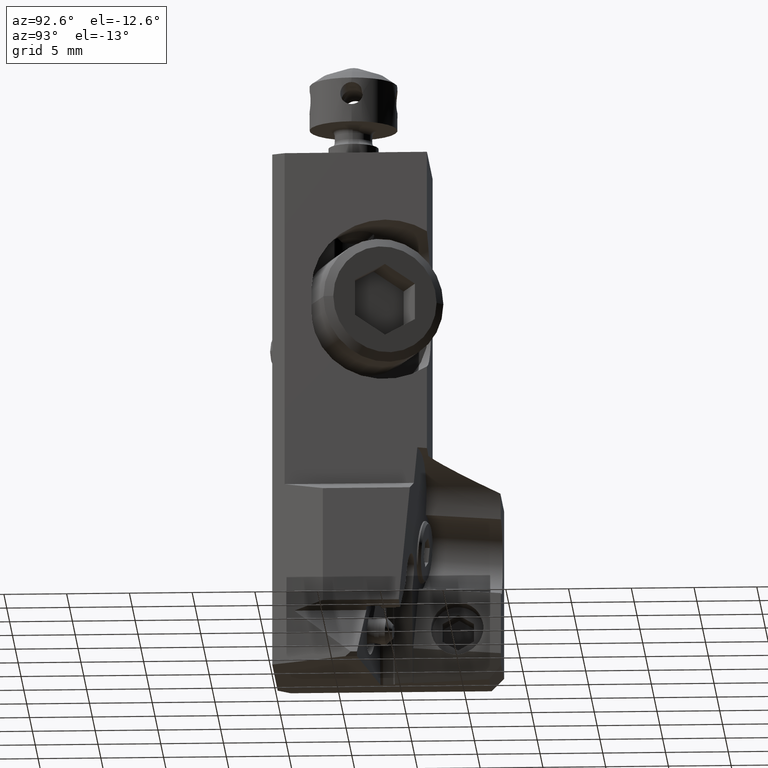
[diagram: clean part render]
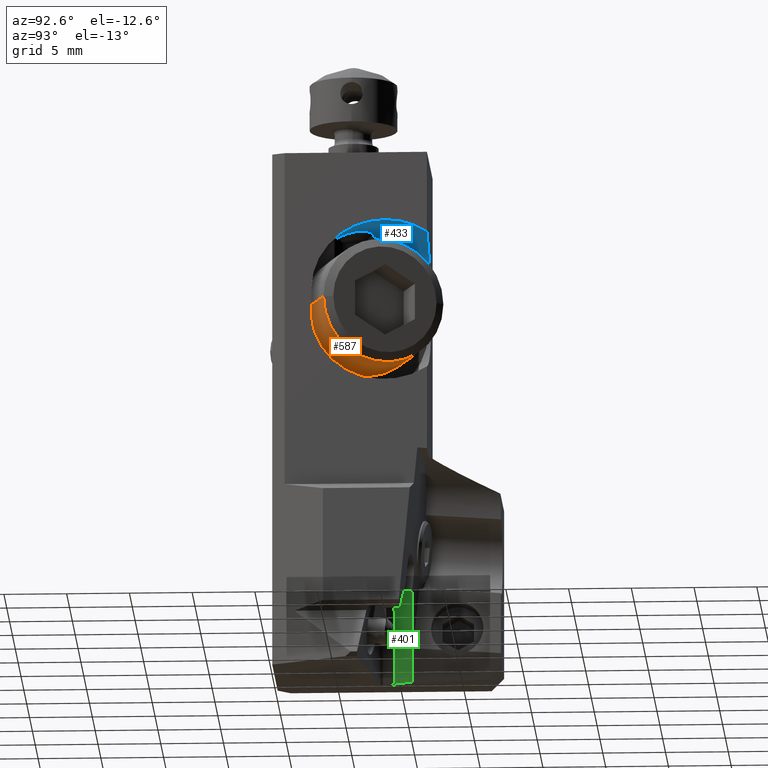
[diagram: same view with three faces highlighted in distinct colors, each labeled with its STEP entity id]
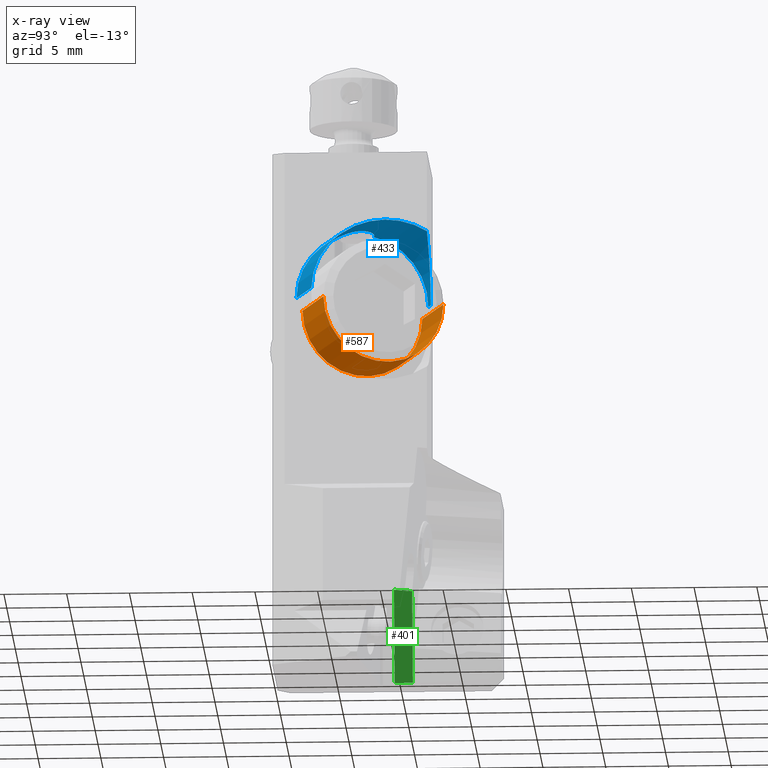
[diagram: x-ray of the same camera — body ghosted, the three highlighted faces saturated]
A machine part, auxiliary view with three faces highlighted in distinct colors.
The next image is the same camera in x-ray (body ghosted, the three faces saturated) — at least one of them is partly hidden behind the body in this view.
Their STEP definitions:

[orange] entity #587 — the highlighted cylindrical surface (partial cylindrical patch) has radius 5 mm, axis along (0.9397, 0.342, 0).
#204=CYLINDRICAL_SURFACE('',#4647,5.000000000001);
#372=CIRCLE('',#4641,5.000000000001);
#375=CIRCLE('',#4646,4.999999999997);
#587=ADVANCED_FACE('',(#908),#204,.T.);
#908=FACE_OUTER_BOUND('',#1137,.T.);
#1137=EDGE_LOOP('',(#2355,#2356,#2357,#2358));
#2355=ORIENTED_EDGE('',*,*,#3354,.T.);
#2356=ORIENTED_EDGE('',*,*,#3357,.F.);
#2357=ORIENTED_EDGE('',*,*,#3359,.T.);
#2358=ORIENTED_EDGE('',*,*,#3358,.F.);
#2770=VERTEX_POINT('',#7693);
#2771=VERTEX_POINT('',#7694);
#2772=VERTEX_POINT('',#7698);
#2773=VERTEX_POINT('',#7699);
#3354=EDGE_CURVE('',#2770,#2771,#372,.T.);
#3357=EDGE_CURVE('',#2773,#2771,#3713,.T.);
#3358=EDGE_CURVE('',#2770,#2772,#3714,.T.);
#3359=EDGE_CURVE('',#2773,#2772,#375,.T.);
#3713=LINE('',#7700,#4066);
#3714=LINE('',#7701,#4067);
#4066=VECTOR('',#5865,1.);
#4067=VECTOR('',#5866,1.);
#4641=AXIS2_PLACEMENT_3D('',#7692,#5857,#5858);
#4646=AXIS2_PLACEMENT_3D('',#7703,#5869,#5870);
#4647=AXIS2_PLACEMENT_3D('',#7704,#5871,#5872);
#5857=DIRECTION('',(0.939692620785822,0.342020143325908,0.));
#5858=DIRECTION('',(0.342020143325908,-0.939692620785822,0.));
#5865=DIRECTION('',(-0.939692620785854,-0.34202014332582,0.));
#5866=DIRECTION('',(0.939692620785757,0.342020143326084,0.));
#5869=DIRECTION('',(-0.939692620786146,-0.342020143325017,0.));
#5870=DIRECTION('',(-0.342020143325017,0.939692620786146,0.));
#5871=DIRECTION('',(0.939692620785821,0.342020143325908,0.));
#5872=DIRECTION('',(0.342020143325908,-0.939692620785821,0.));
#7692=CARTESIAN_POINT('',(-5.638155724714,6.951551716972,-12.));
#7693=CARTESIAN_POINT('',(-3.928055008086,2.253088613043,-12.));
#7694=CARTESIAN_POINT('',(-7.348256441344,11.6500148209,-12.));
#7698=CARTESIAN_POINT('',(1.334223668309,4.168401415667,-12.));
#7699=CARTESIAN_POINT('',(-2.085977764944,13.56532762353,-12.));
#7700=CARTESIAN_POINT('',(-2.085977764944,13.56532762353,-12.));
#7701=CARTESIAN_POINT('',(-3.928055008086,2.253088613043,-12.));
#7703=CARTESIAN_POINT('',(-0.3758770483201,8.866864519598,-12.));
#7704=CARTESIAN_POINT('',(-5.743401298242,6.91324546092,-12.));

[blue] entity #433 — the highlighted cylindrical surface (partial cylindrical patch) has radius 5.5 mm, axis along (-0.9397, -0.342, 0).
#154=CYLINDRICAL_SURFACE('',#4343,5.5);
#223=CIRCLE('',#4301,5.5);
#224=CIRCLE('',#4302,5.5);
#433=ADVANCED_FACE('',(#760),#154,.F.);
#760=FACE_OUTER_BOUND('',#977,.T.);
#977=EDGE_LOOP('',(#1591,#1592,#1593,#1594,#1595,#1596,#1597,#1598,#1599,
#1600));
#1153=B_SPLINE_CURVE_WITH_KNOTS('',3,(#6278,#6279,#6280,#6281,#6282,#6283,
#6284,#6285,#6286,#6287,#6288,#6289,#6290),.UNSPECIFIED.,.F.,.F.,(4,3,3,
3,4),(0.,0.302663753057864,0.605267754075133,0.906389752017985,1.),
 .UNSPECIFIED.);
#1158=B_SPLINE_CURVE_WITH_KNOTS('',3,(#6424,#6425,#6426,#6427,#6428,#6429,
#6430,#6431,#6432,#6433,#6434,#6435,#6436),.UNSPECIFIED.,.F.,.F.,(4,1,1,
1,1,1,1,1,1,1,4),(0.,0.1,0.2,0.3,0.4,0.5,0.6,0.7,0.8,0.9,1.),
 .UNSPECIFIED.);
#1159=B_SPLINE_CURVE_WITH_KNOTS('',3,(#6438,#6439,#6440,#6441,#6442,#6443,
#6444,#6445,#6446,#6447),.UNSPECIFIED.,.F.,.F.,(4,3,3,4),(0.,0.409159998775695,
0.818098861441714,1.),.UNSPECIFIED.);
#1194=ELLIPSE('',#4290,5.85297774861604,5.5);
#1195=ELLIPSE('',#4291,5.85297774861604,5.5);
#1199=ELLIPSE('',#4298,16.0809242009276,5.5);
#1591=ORIENTED_EDGE('',*,*,#2982,.F.);
#1592=ORIENTED_EDGE('',*,*,#2981,.F.);
#1593=ORIENTED_EDGE('',*,*,#2924,.T.);
#1594=ORIENTED_EDGE('',*,*,#2920,.F.);
#1595=ORIENTED_EDGE('',*,*,#2918,.T.);
#1596=ORIENTED_EDGE('',*,*,#2902,.T.);
#1597=ORIENTED_EDGE('',*,*,#2901,.F.);
#1598=ORIENTED_EDGE('',*,*,#2983,.T.);
#1599=ORIENTED_EDGE('',*,*,#2922,.T.);
#1600=ORIENTED_EDGE('',*,*,#2933,.F.);
#2486=VERTEX_POINT('',#6209);
#2487=VERTEX_POINT('',#6211);
#2488=VERTEX_POINT('',#6213);
#2500=VERTEX_POINT('',#6248);
#2501=VERTEX_POINT('',#6252);
#2502=VERTEX_POINT('',#6256);
#2503=VERTEX_POINT('',#6257);
#2504=VERTEX_POINT('',#6260);
#2512=VERTEX_POINT('',#6277);
#2538=VERTEX_POINT('',#6437);
#2901=EDGE_CURVE('',#2486,#2487,#1194,.T.);
#2902=EDGE_CURVE('',#2488,#2487,#1195,.T.);
#2918=EDGE_CURVE('',#2500,#2488,#1199,.T.);
#2920=EDGE_CURVE('',#2500,#2501,#3476,.T.);
#2922=EDGE_CURVE('',#2502,#2503,#223,.T.);
#2924=EDGE_CURVE('',#2504,#2501,#224,.T.);
#2933=EDGE_CURVE('',#2512,#2503,#1153,.T.);
#2981=EDGE_CURVE('',#2504,#2538,#1158,.T.);
#2982=EDGE_CURVE('',#2538,#2512,#1159,.T.);
#2983=EDGE_CURVE('',#2486,#2502,#3512,.T.);
#3476=LINE('',#6251,#3829);
#3512=LINE('',#6449,#3865);
#3829=VECTOR('',#4938,1.);
#3865=VECTOR('',#5060,1.);
#4290=AXIS2_PLACEMENT_3D('',#6210,#4907,#4908);
#4291=AXIS2_PLACEMENT_3D('',#6212,#4909,#4910);
#4298=AXIS2_PLACEMENT_3D('',#6247,#4933,#4934);
#4301=AXIS2_PLACEMENT_3D('',#6255,#4942,#4943);
#4302=AXIS2_PLACEMENT_3D('',#6259,#4945,#4946);
#4343=AXIS2_PLACEMENT_3D('',#6450,#5061,#5062);
#4907=DIRECTION('',(-1.,0.,0.));
#4908=DIRECTION('',(0.,-1.,0.));
#4909=DIRECTION('',(1.,0.,0.));
#4910=DIRECTION('',(0.,-1.,0.));
#4933=DIRECTION('',(0.,1.,0.));
#4934=DIRECTION('',(-1.,0.,0.));
#4938=DIRECTION('',(-0.939692620786157,-0.342020143324985,1.68955330105492E-13));
#4942=DIRECTION('',(-0.939692620786146,-0.342020143325017,0.));
#4943=DIRECTION('',(0.342020143325017,-0.939692620786146,0.));
#4945=DIRECTION('',(-0.939692620786146,-0.342020143325017,0.));
#4946=DIRECTION('',(-0.0584435411452538,0.160572309609899,0.985292284494782));
#5060=DIRECTION('',(-0.939692620786005,-0.342020143325402,-3.15448152444402E-14));
#5061=DIRECTION('',(-0.939692620786146,-0.342020143325017,0.));
#5062=DIRECTION('',(3.42844439706689E-13,-9.41797145321227E-13,-1.));
#6209=CARTESIAN_POINT('',(1.95066185426631E-13,3.15069482830891,-11.));
#6210=CARTESIAN_POINT('',(0.,9.00367257692385,-11.));
#6211=CARTESIAN_POINT('',(0.,9.003672576929,-5.5));
#6212=CARTESIAN_POINT('',(0.,9.00367257692385,-11.));
#6213=CARTESIAN_POINT('',(-6.39222471251255E-14,12.35,-6.48757281636297));
#6247=CARTESIAN_POINT('',(9.19395903302334,12.35,-11.));
#6248=CARTESIAN_POINT('',(-6.88696516790515,12.35,-11.));
#6251=CARTESIAN_POINT('',(-6.886965167906,12.35,-11.));
#6252=CARTESIAN_POINT('',(-7.519266513006,12.1198611313,-11.));
#6255=CARTESIAN_POINT('',(-5.638155724712,6.951551716975,-11.));
#6256=CARTESIAN_POINT('',(-3.757044936424,1.783242302652,-11.));
#6257=CARTESIAN_POINT('',(-4.83344519767795,4.74062771474342,-6.0286565171942));
#6259=CARTESIAN_POINT('',(-5.638155724718,6.951551716973,-11.));
#6260=CARTESIAN_POINT('',(-5.959595201015,7.834699419828,-5.580892435279));
#6277=CARTESIAN_POINT('',(-3.85,6.24999999999994,-5.64883231788949));
#6278=CARTESIAN_POINT('',(-3.85,6.24999999999994,-5.64883231788949));
#6279=CARTESIAN_POINT('',(-3.85000000000001,6.05930759711953,-5.69138799525712));
#6280=CARTESIAN_POINT('',(-3.88382284581143,5.86759963241104,-5.74132814280639));
#6281=CARTESIAN_POINT('',(-3.94803243260218,5.68973517891511,-5.79048038933975));
#6282=CARTESIAN_POINT('',(-4.0122237486278,5.51192133654778,-5.83961864965708));
#6283=CARTESIAN_POINT('',(-4.10865897806402,5.34270612683605,-5.88923193726378));
#6284=CARTESIAN_POINT('',(-4.23075189720506,5.19571860798389,-5.92973927752277));
#6285=CARTESIAN_POINT('',(-4.35203939108438,5.04970073963785,-5.96997939806617));
#6286=CARTESIAN_POINT('',(-4.50280353129764,4.92128122817485,-6.00208491574196));
#6287=CARTESIAN_POINT('',(-4.6699276449781,4.82399863764848,-6.01810894632717));
#6288=CARTESIAN_POINT('',(-4.72270976521545,4.79327427790718,-6.02316974988454));
#6289=CARTESIAN_POINT('',(-4.77741364274075,4.76537184340519,-6.02672178749754));
#6290=CARTESIAN_POINT('',(-4.83344519767795,4.74062771474342,-6.0286565171942));
#6424=CARTESIAN_POINT('',(-5.959595201015,7.834699419828,-5.580892435279));
#6425=CARTESIAN_POINT('',(-5.903998110912,7.850823711591,-5.580222404605));
#6426=CARTESIAN_POINT('',(-5.791418525752,7.877179202168,-5.577842755338));
#6427=CARTESIAN_POINT('',(-5.617047909625,7.898985484065,-5.571284124605));
#6428=CARTESIAN_POINT('',(-5.440870769111,7.902069129287,-5.562200110317));
#6429=CARTESIAN_POINT('',(-5.265437089083,7.886396822129,-5.551299112814));
#6430=CARTESIAN_POINT('',(-5.092991995693,7.85223097013,-5.539429090493));
#6431=CARTESIAN_POINT('',(-4.924992253078,7.799885438286,-5.527499851701));
#6432=CARTESIAN_POINT('',(-4.763603237294,7.730069211531,-5.516527627291));
#6433=CARTESIAN_POINT('',(-4.609748420122,7.642942178659,-5.507479209054));
#6434=CARTESIAN_POINT('',(-4.467422747298,7.540878900993,-5.501470178397));
#6435=CARTESIAN_POINT('',(-4.381412430471,7.464316451547,-5.5000008048));
#6436=CARTESIAN_POINT('',(-4.340468374439,7.423872601168,-5.5000008048));
#6437=CARTESIAN_POINT('',(-4.34046634593482,7.423874654761,-5.50000000000056));
#6438=CARTESIAN_POINT('',(-4.34046634593482,7.423874654761,-5.50000000000056));
#6439=CARTESIAN_POINT('',(-4.21343264159386,7.29839289673298,-5.49999992747712));
#6440=CARTESIAN_POINT('',(-4.10562139102514,7.14989801493122,-5.50751750497796));
#6441=CARTESIAN_POINT('',(-4.02577349258297,6.99105074376117,-5.52410337826189));
#6442=CARTESIAN_POINT('',(-3.94594384424293,6.83223977885565,-5.54068546066482));
#6443=CARTESIAN_POINT('',(-3.891872060945,6.65889040961515,-5.56679501514142));
#6444=CARTESIAN_POINT('',(-3.86686061377712,6.4852780167537,-5.59998876968386));
#6445=CARTESIAN_POINT('',(-3.85561078481595,6.40718938349229,-5.61491889582469));
#6446=CARTESIAN_POINT('',(-3.84999999999999,6.32836737020524,-5.63134354291874));
#6447=CARTESIAN_POINT('',(-3.85,6.24999999999994,-5.64883231788949));
#6449=CARTESIAN_POINT('',(3.901323708533E-13,3.15069482831,-11.));
#6450=CARTESIAN_POINT('',(1.209761795304,9.443989860966,-11.));

[green] entity #401 — the highlighted planar face has unit normal (0.8486, -0.1717, -0.5003).
#401=ADVANCED_FACE('',(#730),#615,.T.);
#615=PLANE('',#4284);
#730=FACE_OUTER_BOUND('',#942,.T.);
#942=EDGE_LOOP('',(#1390,#1391,#1392,#1393));
#1390=ORIENTED_EDGE('',*,*,#2840,.F.);
#1391=ORIENTED_EDGE('',*,*,#2896,.T.);
#1392=ORIENTED_EDGE('',*,*,#2874,.F.);
#1393=ORIENTED_EDGE('',*,*,#2894,.T.);
#2446=VERTEX_POINT('',#6049);
#2447=VERTEX_POINT('',#6051);
#2469=VERTEX_POINT('',#6158);
#2470=VERTEX_POINT('',#6159);
#2840=EDGE_CURVE('',#2446,#2447,#3417,.T.);
#2874=EDGE_CURVE('',#2469,#2470,#3445,.T.);
#2894=EDGE_CURVE('',#2469,#2447,#3459,.T.);
#2896=EDGE_CURVE('',#2446,#2470,#3460,.T.);
#3417=LINE('',#6050,#3770);
#3445=LINE('',#6157,#3798);
#3459=LINE('',#6194,#3812);
#3460=LINE('',#6197,#3813);
#3770=VECTOR('',#4799,1.);
#3798=VECTOR('',#4857,1.);
#3812=VECTOR('',#4885,1.);
#3813=VECTOR('',#4890,1.);
#4284=AXIS2_PLACEMENT_3D('',#6198,#4891,#4892);
#4799=DIRECTION('',(0.129511455325899,0.984511703696191,-0.118167204522199));
#4857=DIRECTION('',(-0.198296447930607,-0.980142091096033,1.52574573465105E-13));
#4885=DIRECTION('',(0.510164200244284,0.0156379169698095,0.859934848893773));
#4890=DIRECTION('',(-0.510164200244208,-0.0156379169700103,-0.859934848893814));
#4891=DIRECTION('',(0.848636082777895,-0.171690943924899,-0.500338903925697));
#4892=DIRECTION('',(0.139818767684262,0.985026738381771,-0.100861473696477));
#6049=CARTESIAN_POINT('',(-3.79631238554,9.550431490125,-34.85475665781));
#6050=CARTESIAN_POINT('',(-3.79631238554,9.550431490125,-34.85475665781));
#6051=CARTESIAN_POINT('',(-3.604583536025,11.00790330842,-35.02969147046));
#6157=CARTESIAN_POINT('',(-7.502770881722,10.88841328929,-41.60049189996));
#6158=CARTESIAN_POINT('',(-7.502770881722,10.88841328929,-41.60049189996));
#6159=CARTESIAN_POINT('',(-7.798281405981,9.427760281075,-41.60049189996));
#6194=CARTESIAN_POINT('',(-7.502770881722,10.88841328929,-41.60049189996));
#6197=CARTESIAN_POINT('',(-3.79631238554,9.550431490125,-34.85475665781));
#6198=CARTESIAN_POINT('',(-5.693824003736,10.21806501491,-38.30226682187));